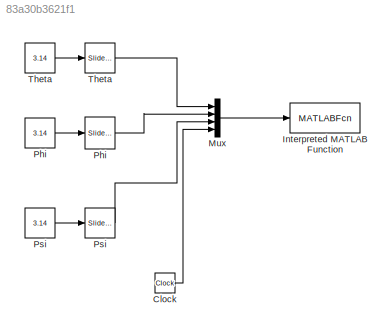
MODEL slx_83a30b3621f1
KIND model
CONFIG AbsTol = auto
CONFIG FixedStep = auto
CONFIG MaxStep = auto
CONFIG MinStep = auto
CONFIG RelTol = 1e-3
CONFIG SampleTimeConstraint = Unconstrained
CONFIG Solver = VariableStepAuto
CONFIG SolverMode = Auto
CONFIG SolverName = VariableStepAuto
CONFIG StartTime = 0.0
CONFIG StopTime = 10000
BLOCK [Clock] Clock
  Decimation = 1
  DisplayTime = on
BLOCK [MATLABFcn] Interpreted MATLAB Function
  MATLABFcn = drawWhirly(u)
  OutputDimensions = 0
  Ports = [1]
BLOCK [Mux] Mux
  DisplayOption = bar
  Ports = [4, 1]
BLOCK [Constant] Phi
  SampleTime = 1
  Value = 3.14
BLOCK [Reference] Phi   REF=simulink/Math
Operations/Slider
Gain
  Ports = [1, 1]
  SourceBlock = simulink/Math\nOperations/Slider\nGain
  SourceType = Slider Gain
BLOCK [Constant] Psi
  SampleTime = 1
  Value = 3.14
BLOCK [Reference] Psi   REF=simulink/Math
Operations/Slider
Gain
  Ports = [1, 1]
  SourceBlock = simulink/Math\nOperations/Slider\nGain
  SourceType = Slider Gain
BLOCK [Constant] Theta
  SampleTime = 1
  Value = 3.14
BLOCK [Reference] Theta   REF=simulink/Math
Operations/Slider
Gain
  Ports = [1, 1]
  SourceBlock = simulink/Math\nOperations/Slider\nGain
  SourceType = Slider Gain
LINE Clock:1 -> Mux:4
LINE Mux:1 -> Interpreted MATLAB Function:1
LINE Phi :1 -> Mux:2
LINE Phi:1 -> Phi :1
LINE Psi :1 -> Mux:3
LINE Psi:1 -> Psi :1
LINE Theta :1 -> Mux:1
LINE Theta:1 -> Theta :1
